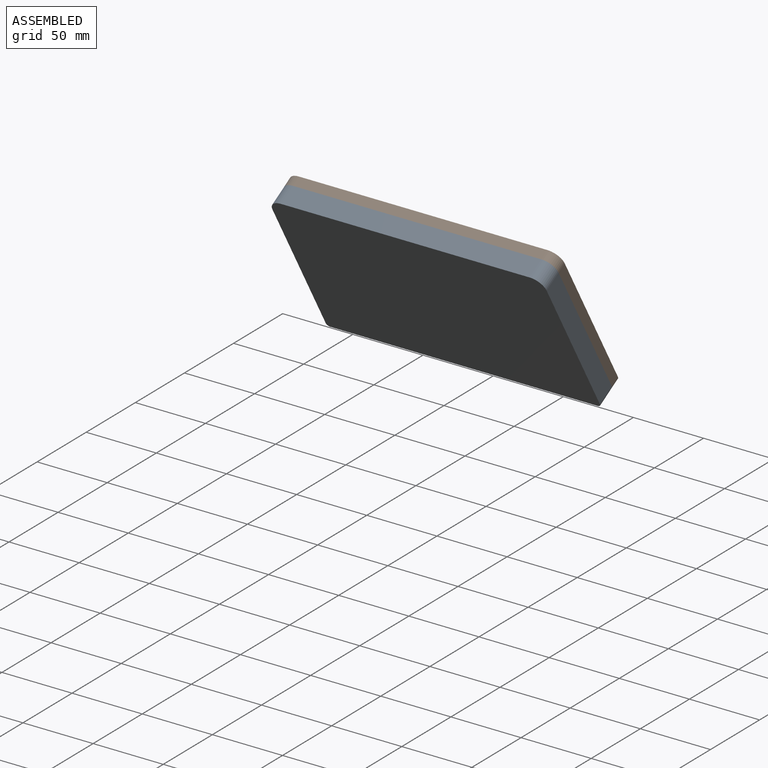
[diagram: assembled view]
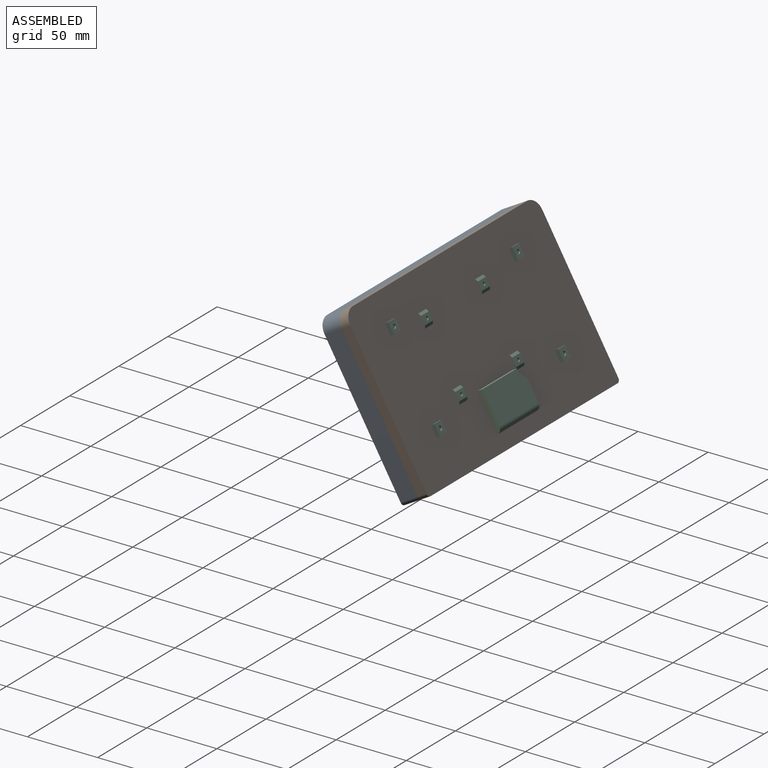
[diagram: assembled view, second angle]
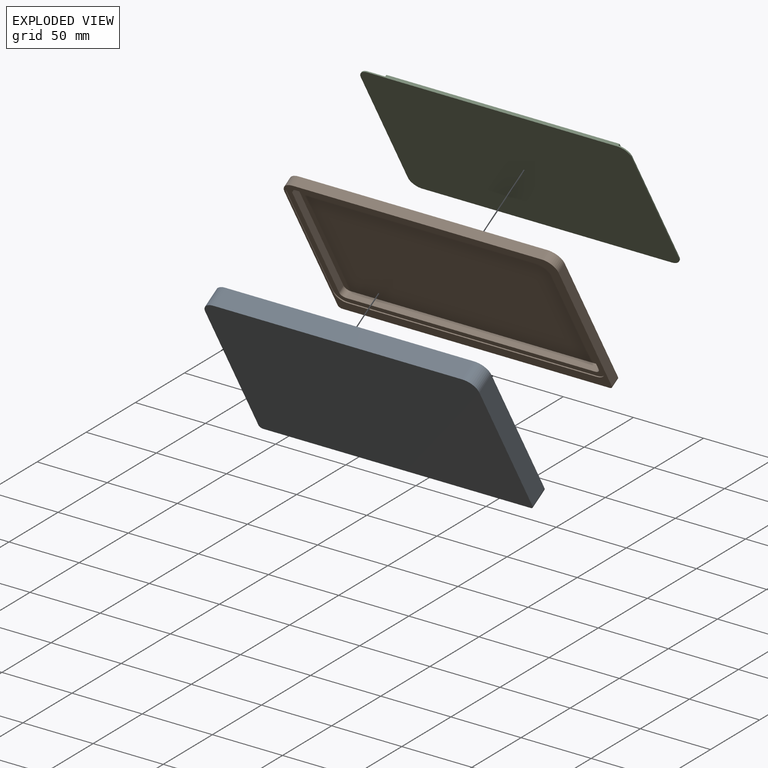
[diagram: exploded view]
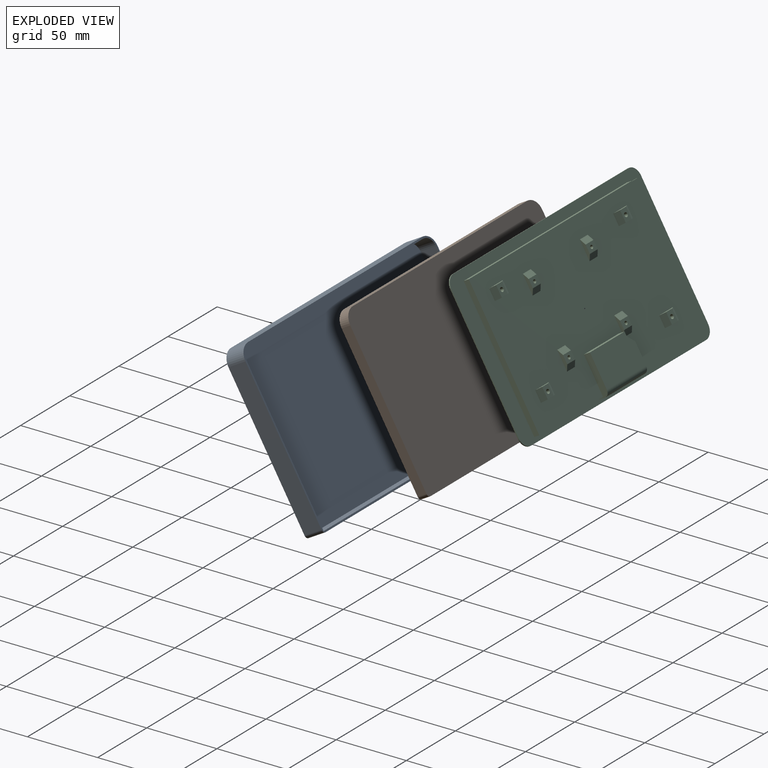
[diagram: exploded view, second angle]
ASSEMBLY  parts=3 mates=2
PART A: 33 faces, bbox 195.4x120x14 mm
  f0: plane 195.4x120mm, normal (0,0,-1), area 23410.1mm2, adj f7,f8,f9,f10,f11,f12,f15,f16
  f1: plane 193x12.8mm, normal (0,-1,0), area 2470.4mm2, adj f2,f4,f13,f14
  f2: plane 109.74x12.8mm, normal (1,0,0), area 1404.7mm2, adj f1,f6,f13,f14
  f3: plane 177.28x12.8mm, normal (0,1,0), area 2269.2mm2, adj f5,f6,f13,f14
  f4: plane 109.74x12.8mm, normal (-1,0,0), area 1404.7mm2, adj f1,f5,f13,f14
  f5: cylinder r=7.86mm len=12.8mm, axis (0,0,-1), area 158mm2, adj f3,f4,f13,f14
  f6: cylinder r=7.86mm len=12.8mm, axis (0,0,-1), area 158mm2, adj f2,f3,f13,f14
  f7: plane 108.44x14mm, normal (1,0,0), area 1518.2mm2, adj f0,f12,f13,f15
  f8: plane 190.4x14mm, normal (0,1,0), area 2665.6mm2, adj f0,f13,f15,f16
  f9: plane 108.44x14mm, normal (-1,0,0), area 1518.2mm2, adj f0,f10,f13,f16
  f10: cylinder r=9.06mm len=14mm, axis (0,0,-1), area 199.2mm2, adj f0,f9,f11,f13
  f11: plane 177.28x14mm, normal (0,-1,0), area 2481.9mm2, adj f0,f10,f12,f13
  f12: cylinder r=9.06mm len=14mm, axis (0,0,-1), area 199.2mm2, adj f0,f7,f11,f13
  f13: plane 195.4x120mm, normal (0,0,1), area 739.8mm2, adj f1,f2,f3,f4,f5,f6,f7,f8
  f14: plane 193x117.6mm, normal (0,0,1), area 22557.2mm2, adj f1,f2,f3,f4,f5,f6,f18,f21
  f15: cylinder r=2.5mm len=14mm, axis (0,0,-1), area 55mm2, adj f0,f7,f8,f13
  f16: cylinder r=2.5mm len=14mm, axis (0,0,1), area 55mm2, adj f0,f8,f9,f13
  f17: cylinder r=1.38mm len=2.75mm, axis (0,0,-1), area 17.3mm2, adj f19,f20
  f18: cylinder r=3mm len=6mm, axis (0,0,-1), area 37.7mm2, adj f14,f19
  f19: plane 6x6mm, normal (0,0,1), area 22.3mm2, adj f17,f18
  f20: plane 2.75x2.75mm, normal (0,0,1), area 5.9mm2, adj f17
  f21: cylinder r=3mm len=6mm, axis (0,0,-1), area 37.7mm2, adj f14,f23
  f22: cylinder r=1.38mm len=2.75mm, axis (0,0,-1), area 17.3mm2, adj f23,f24
  f23: plane 6x6mm, normal (0,0,1), area 22.3mm2, adj f21,f22
  f24: plane 2.75x2.75mm, normal (0,0,1), area 5.9mm2, adj f22
  f25: cylinder r=1.38mm len=2.75mm, axis (0,0,-1), area 17.3mm2, adj f27,f28
  f26: cylinder r=3mm len=6mm, axis (0,0,-1), area 37.7mm2, adj f14,f27
  f27: plane 6x6mm, normal (0,0,1), area 22.3mm2, adj f25,f26
  f28: plane 2.75x2.75mm, normal (0,0,1), area 5.9mm2, adj f25
  f29: cylinder r=3mm len=6mm, axis (0,0,-1), area 37.7mm2, adj f14,f31
  f30: cylinder r=1.38mm len=2.75mm, axis (0,0,-1), area 17.3mm2, adj f31,f32
  f31: plane 6x6mm, normal (0,0,1), area 22.3mm2, adj f29,f30
  f32: plane 2.75x2.75mm, normal (0,0,1), area 5.9mm2, adj f30
PART B: 28 faces, bbox 195.4x120x7.2 mm
  f0: cylinder r=3.86mm len=5.3mm, axis (0,0,-1), area 32.1mm2, adj f1,f7,f8,f24
  f1: plane 177.28x5.3mm, normal (0,-1,0), area 939.6mm2, adj f0,f2,f8,f24
  f2: cylinder r=3.86mm len=5.3mm, axis (0,0,-1), area 32.1mm2, adj f1,f3,f8,f24
  f3: plane 95.08x5.3mm, normal (-1,0,0), area 503.9mm2, adj f2,f4,f8,f24
  f4: cylinder r=3.86mm len=5.3mm, axis (0,0,-1), area 32.1mm2, adj f3,f5,f8,f24
  f5: plane 177.28x5.3mm, normal (0,1,0), area 939.6mm2, adj f4,f6,f8,f24
  f6: cylinder r=3.86mm len=5.3mm, axis (0,0,-1), area 32.1mm2, adj f5,f7,f8,f24
  f7: plane 95.08x5.3mm, normal (1,0,0), area 503.9mm2, adj f0,f6,f8,f24
  f8: plane 193x110.8mm, normal (0,0,1), area 2326.2mm2, adj f0,f1,f2,f3,f4,f5,f6,f7
  f9: plane 95.08x0.7mm, normal (-1,0,0), area 66.6mm2, adj f8,f13,f14,f23
  f10: plane 177.28x0.7mm, normal (0,-1,0), area 124.1mm2, adj f8,f13,f16,f23
  f11: plane 95.08x0.7mm, normal (1,0,0), area 66.6mm2, adj f8,f15,f16,f23
  f12: plane 177.28x0.7mm, normal (0,1,0), area 124.1mm2, adj f8,f14,f15,f23
  f13: cylinder r=7.86mm len=7.86mm, axis (0,0,-1), area 8.6mm2, adj f8,f9,f10,f23
  f14: cylinder r=7.86mm len=7.86mm, axis (0,0,-1), area 8.6mm2, adj f8,f9,f12,f23
  f15: cylinder r=7.86mm len=7.86mm, axis (0,0,-1), area 8.6mm2, adj f8,f11,f12,f23
  f16: cylinder r=7.86mm len=7.86mm, axis (0,0,-1), area 8.6mm2, adj f8,f10,f11,f23
  f17: plane 108.44x7.2mm, normal (1,0,0), area 780.8mm2, adj f18,f23,f25,f27
  f18: cylinder r=9.06mm len=9.06mm, axis (0,0,-1), area 102.5mm2, adj f17,f19,f23,f25
  f19: plane 177.28x7.2mm, normal (0,1,0), area 1276.4mm2, adj f18,f20,f23,f25
  f20: cylinder r=9.06mm len=9.06mm, axis (0,0,-1), area 102.5mm2, adj f19,f21,f23,f25
  f21: plane 108.44x7.2mm, normal (-1,0,0), area 780.8mm2, adj f20,f23,f25,f26
  f22: plane 190.4x7.2mm, normal (0,-1,0), area 1370.9mm2, adj f23,f25,f26,f27
  f23: plane 195.4x120mm, normal (0,0,1), area 2078.7mm2, adj f9,f10,f11,f12,f13,f14,f15,f16
  f24: plane 185x102.8mm, normal (0,0,1), area 19005.2mm2, adj f0,f1,f2,f3,f4,f5,f6,f7
  f25: plane 195.4x120mm, normal (0,0,-1), area 23410.1mm2, adj f17,f18,f19,f20,f21,f22,f26,f27
  f26: cylinder r=2.5mm len=7.2mm, axis (0,0,-1), area 28.3mm2, adj f21,f22,f23,f25
  f27: cylinder r=2.5mm len=7.2mm, axis (0,0,1), area 28.3mm2, adj f17,f22,f23,f25
PART C: 86 faces, bbox 193x110.8x11 mm
  f0: plane 5x3.1mm, normal (-1,0,0), area 15.5mm2, adj f1,f2,f8,f9
  f1: plane 35.22x5mm, normal (0,1,0), area 176.1mm2, adj f0,f2,f8,f10
  f2: plane 166.2x100.6mm, normal (0,0,-1), area 14745.1mm2, adj f0,f1,f6,f9,f10,f11,f12,f13
  f3: plane 192.96x110.76mm, normal (0,0,1), area 21324mm2, adj f77,f78,f79,f80,f81,f82,f83,f84
  f4: cylinder r=1mm len=40.11mm, axis (1,0,0), area 54.9mm2, adj f5,f6,f10,f11
  f5: plane 40.11x4.02mm, normal (0,-1,0), area 161.3mm2, adj f4,f6,f7,f10
  f6: plane 19.88x9mm, normal (-1,0,0), area 99mm2, adj f2,f4,f5,f7,f8,f9,f11
  f7: cylinder r=4mm len=40.11mm, axis (-1,0,0), area 252mm2, adj f5,f6,f8,f10
  f8: plane 40.11x24.1mm, normal (0,0,-1), area 939mm2, adj f0,f1,f6,f7,f9,f10
  f9: plane 5.12x5mm, normal (-0.72,0.69,0), area 35.4mm2, adj f0,f2,f6,f8
  f10: plane 28.1x9mm, normal (1,0,0), area 140.1mm2, adj f1,f2,f4,f5,f7,f8,f11
  f11: plane 166.2x4.16mm, normal (0,-1,0), area 531mm2, adj f2,f4,f6,f10,f67,f68,f70
  f12: plane 8x4mm, normal (0,-0.53,-0.85), area 37.7mm2, adj f2,f13,f14,f53
  f13: plane 14x2.5mm, normal (1,0,0), area 25mm2, adj f2,f12,f14,f15
  f14: plane 8x6mm, normal (0,0,-1), area 43.1mm2, adj f12,f13,f15,f52,f53
  f15: plane 8x4mm, normal (0,0.53,-0.85), area 37.7mm2, adj f2,f13,f14,f53
  f16: plane 8x4mm, normal (0,0.53,-0.85), area 37.7mm2, adj f2,f17,f18,f50
  f17: plane 14x2.5mm, normal (-1,0,0), area 25mm2, adj f2,f16,f18,f19
  f18: plane 8x6mm, normal (0,0,-1), area 43.1mm2, adj f16,f17,f19,f49,f50
  f19: plane 8x4mm, normal (0,-0.53,-0.85), area 37.7mm2, adj f2,f17,f18,f50
  f20: plane 8x4mm, normal (0,0.53,-0.85), area 37.7mm2, adj f2,f21,f22,f45
  f21: plane 14x2.5mm, normal (-1,0,0), area 25mm2, adj f2,f20,f22,f23
  f22: plane 8x6mm, normal (0,0,-1), area 43.1mm2, adj f20,f21,f23,f44,f45
  f23: plane 8x4mm, normal (0,-0.53,-0.85), area 37.7mm2, adj f2,f21,f22,f45
  f24: plane 8x4mm, normal (0,-0.53,-0.85), area 37.7mm2, adj f2,f25,f26,f47
  f25: plane 14x2.5mm, normal (1,0,0), area 25mm2, adj f2,f24,f26,f27
  f26: plane 8x6mm, normal (0,0,-1), area 43.1mm2, adj f24,f25,f27,f46,f47
  f27: plane 8x4mm, normal (0,0.53,-0.85), area 37.7mm2, adj f2,f25,f26,f47
  f28: plane 8.15x4mm, normal (-0.53,0,-0.85), area 38.4mm2, adj f2,f29,f30,f59
  f29: plane 14.09x2.5mm, normal (0,-1,0), area 25.2mm2, adj f2,f28,f30,f34
  f30: plane 8.15x6.09mm, normal (0,0,-1), area 42.6mm2, adj f28,f29,f34,f58,f59
  f31: plane 8.15x4mm, normal (-0.53,0,-0.85), area 38.4mm2, adj f2,f32,f33,f65
  f32: plane 14.09x2.5mm, normal (0,-1,0), area 25.2mm2, adj f2,f31,f33,f35
  f33: plane 8.15x6.09mm, normal (0,0,-1), area 42.6mm2, adj f31,f32,f35,f64,f65
  f34: plane 8.15x4mm, normal (0.53,0,-0.85), area 38.4mm2, adj f2,f29,f30,f59
  f35: plane 8.15x4mm, normal (0.53,0,-0.85), area 38.4mm2, adj f2,f32,f33,f65
  f36: plane 8.15x4mm, normal (-0.53,0,-0.85), area 38.4mm2, adj f2,f37,f38,f56
  f37: plane 14.09x2.5mm, normal (0,-1,0), area 25.2mm2, adj f2,f36,f38,f39
  f38: plane 8.15x6.09mm, normal (0,0,-1), area 42.6mm2, adj f36,f37,f39,f55,f56
  f39: plane 8.15x4mm, normal (0.53,0,-0.85), area 38.4mm2, adj f2,f37,f38,f56
  f40: plane 8.15x4mm, normal (0.53,0,-0.85), area 38.4mm2, adj f2,f41,f42,f62
  f41: plane 14.09x2.5mm, normal (0,1,0), area 25.2mm2, adj f2,f40,f42,f43
  f42: plane 8.15x6.09mm, normal (0,0,-1), area 42.6mm2, adj f40,f41,f43,f61,f62
  f43: plane 8.15x4mm, normal (-0.53,0,-0.85), area 38.4mm2, adj f2,f41,f42,f62
  f44: cylinder r=1.25mm len=2.5mm, axis (0,0,-1), area 19.6mm2, adj f22,f48
  f45: plane 14x2.5mm, normal (1,0,0), area 25mm2, adj f2,f20,f22,f23
  f46: cylinder r=1.25mm len=2.5mm, axis (0,0,-1), area 19.6mm2, adj f26,f51
  f47: plane 14x2.5mm, normal (-1,0,0), area 25mm2, adj f2,f24,f26,f27
  f48: plane 2.5x2.5mm, normal (0,0,-1), area 4.9mm2, adj f44
  f49: cylinder r=1.25mm len=2.5mm, axis (0,0,-1), area 19.6mm2, adj f18,f54
  f50: plane 14x2.5mm, normal (1,0,0), area 25mm2, adj f2,f16,f18,f19
  f51: plane 2.5x2.5mm, normal (0,0,-1), area 4.9mm2, adj f46
  f52: cylinder r=1.25mm len=2.5mm, axis (0,0,-1), area 19.6mm2, adj f14,f57
  f53: plane 14x2.5mm, normal (-1,0,0), area 25mm2, adj f2,f12,f14,f15
  f54: plane 2.5x2.5mm, normal (0,0,-1), area 4.9mm2, adj f49
  f55: cylinder r=1.5mm len=3mm, axis (0,0,-1), area 23.6mm2, adj f38,f60
  f56: plane 14.09x2.5mm, normal (0,1,0), area 25.2mm2, adj f2,f36,f38,f39
  f57: plane 2.5x2.5mm, normal (0,0,-1), area 4.9mm2, adj f52
  f58: cylinder r=1.5mm len=3mm, axis (0,0,-1), area 23.6mm2, adj f30,f63
  f59: plane 14.09x2.5mm, normal (0,1,0), area 25.2mm2, adj f2,f28,f30,f34
  f60: plane 3x3mm, normal (0,0,-1), area 7.1mm2, adj f55
  f61: cylinder r=1.5mm len=3mm, axis (0,0,-1), area 23.6mm2, adj f42,f66
  f62: plane 14.09x2.5mm, normal (0,-1,0), area 25.2mm2, adj f2,f40,f42,f43
  f63: plane 3x3mm, normal (0,0,-1), area 7.1mm2, adj f58
  f64: cylinder r=1.5mm len=3mm, axis (0,0,-1), area 23.6mm2, adj f33,f71
  f65: plane 14.09x2.5mm, normal (0,1,0), area 25.2mm2, adj f2,f31,f33,f35
  f66: plane 3x3mm, normal (0,0,-1), area 7.1mm2, adj f61
  f67: plane 166.2x100.6mm, normal (0,0,1), area 1055.2mm2, adj f11,f68,f69,f70,f73,f74,f76
  f68: plane 100.6x4.16mm, normal (1,0,0), area 418.5mm2, adj f2,f11,f67,f69
  f69: plane 166.2x4.16mm, normal (0,1,0), area 691.4mm2, adj f2,f67,f68,f70
  f70: plane 100.6x4.16mm, normal (-1,0,0), area 418.5mm2, adj f2,f11,f67,f69,f72
  f71: plane 3x3mm, normal (0,0,-1), area 7.1mm2, adj f64
  f72: plane 96.85x10.11mm, normal (0,0,-1), area 979.2mm2, adj f70,f74,f75,f76
  f73: plane 96.85x1mm, normal (1,0,0), area 96.8mm2, adj f67,f74,f76,f85
  f74: plane 171.85x1mm, normal (0,1,0), area 171.8mm2, adj f67,f72,f73,f75,f85
  f75: plane 96.85x1mm, normal (-1,0,0), area 96.9mm2, adj f72,f74,f76,f85
  f76: plane 171.85x1mm, normal (0,-1,0), area 171.8mm2, adj f67,f72,f73,f75,f85
  f77: plane 95.76x0.8mm, normal (1,0,0), area 76.6mm2, adj f3,f78,f84,f85
  f78: cylinder r=7.5mm len=7.5mm, axis (0,0,1), area 9.4mm2, adj f3,f77,f79,f85
  f79: plane 177.96x0.8mm, normal (0,-1,0), area 142.4mm2, adj f3,f78,f80,f85
  f80: cylinder r=7.5mm len=7.5mm, axis (0,0,1), area 9.4mm2, adj f3,f79,f81,f85
  f81: plane 95.76x0.8mm, normal (-1,0,0), area 76.6mm2, adj f3,f80,f82,f85
  f82: cylinder r=7.5mm len=7.5mm, axis (0,0,1), area 9.4mm2, adj f3,f81,f83,f85
  f83: plane 177.96x0.8mm, normal (0,1,0), area 142.4mm2, adj f3,f82,f84,f85
  f84: cylinder r=7.5mm len=7.5mm, axis (0,0,1), area 9.4mm2, adj f3,f77,f83,f85
  f85: plane 192.96x110.76mm, normal (0,0,-1), area 4680.3mm2, adj f73,f74,f75,f76,f77,f78,f79,f80
PLACE A rot(axis=(-1,0,0),60deg) t=(-108.5,28.45,78.52)mm
PLACE B rot(axis=(1,0,0),120deg) t=(-25.54,28.9,117.74)mm
PLACE C rot(axis=(1,0,0),120deg) t=(-122.36,51.44,68.11)mm
MATE fastened B.f23 <-> A.f13  axis (0,-0.87,-0.5) through (63.1,-5.15,164.72)mm
MATE fastened C.f85 <-> B.f8  axis (0,-0.87,-0.5) through (63.1,-3.94,164.04)mm
